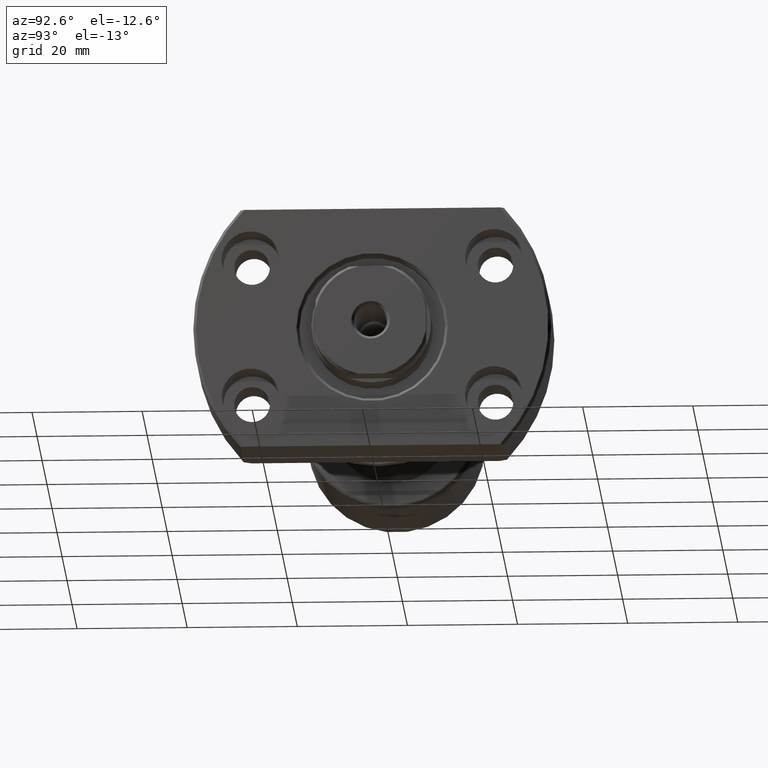
[diagram: clean part render]
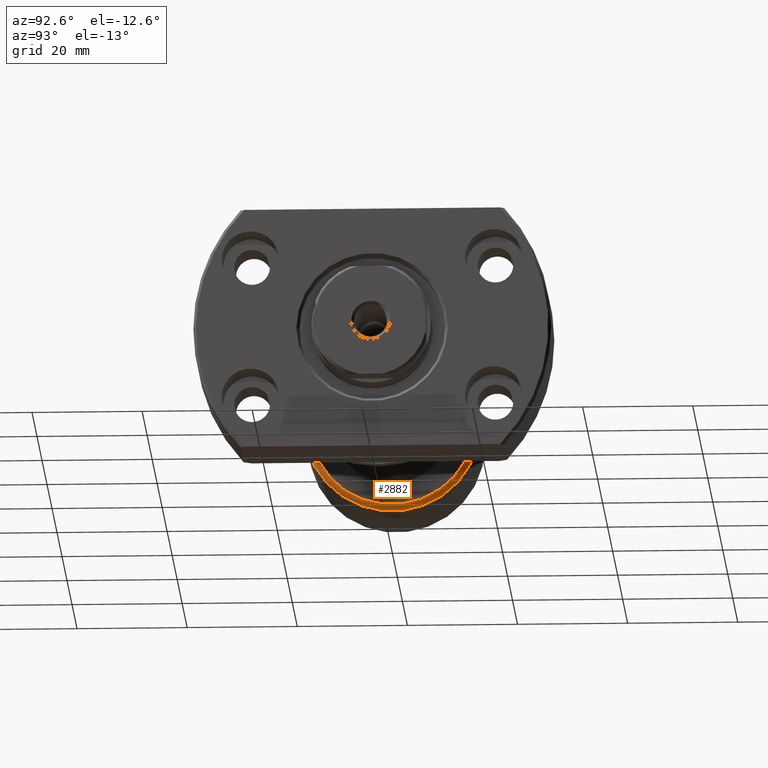
[diagram: same view with one face highlighted and labeled with its STEP entity id]
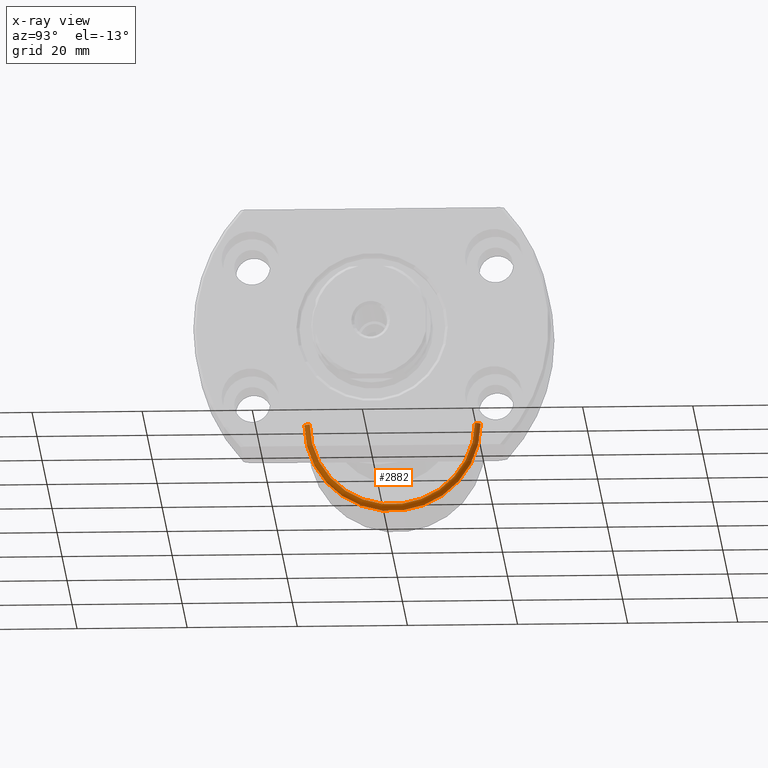
[diagram: x-ray of the same camera — body ghosted, the highlighted face saturated]
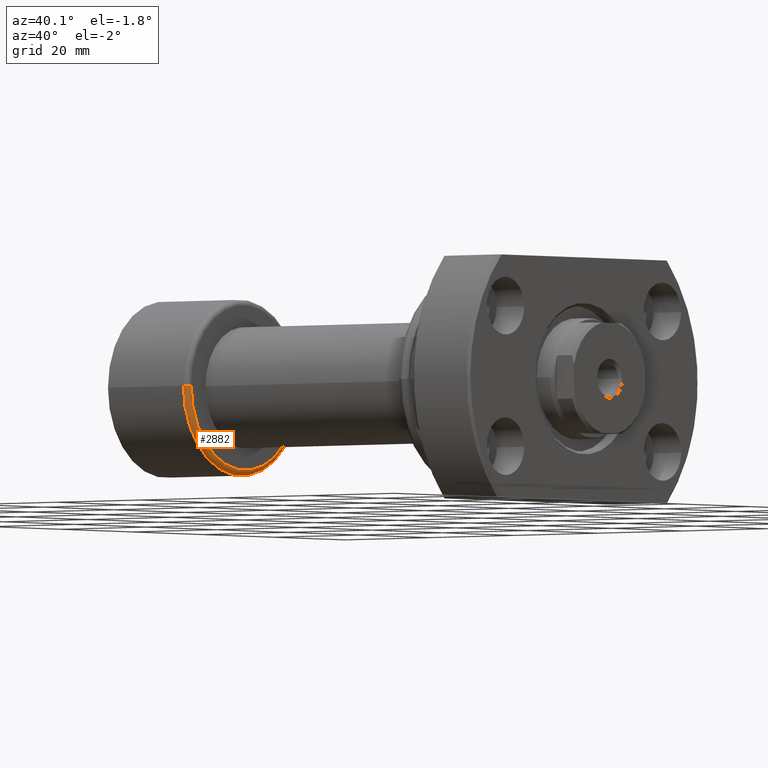
[diagram: same view with one face highlighted and labeled with its STEP entity id]
A machine part, auxiliary view. The second image highlights one B-rep face of the part: STEP entity #2882.
The next image is the same camera in x-ray: the body ghosted, the highlighted face saturated — about 28% of this face is hidden behind the body in this view.
A second angle (auxiliary view) of the same face is appended — the face is thin or edge-on in the first view.
In plain terms, the highlighted toroidal blend (fillet) surface has major radius 15 mm and minor (blend) radius 1 mm.
Its self-contained STEP definition (entity closure, byte-faithful):
#89 = CARTESIAN_POINT ( 'NONE',  ( 19.39999999999999503, 0.000000000000000000, 0.000000000000000000 ) ) ;
#144 = CARTESIAN_POINT ( 'NONE',  ( 19.39999999999999503, 2.074912104813986935E-16, 0.000000000000000000 ) ) ;
#200 = TOROIDAL_SURFACE ( 'NONE', #2019, 15.00000000000000000, 1.000000000000000888 ) ;
#238 = VERTEX_POINT ( 'NONE', #1360 ) ;
#285 = CARTESIAN_POINT ( 'NONE',  ( 19.39999999999999503, 15.00000000000000000, 1.836970198721029589E-15 ) ) ;
#296 = CIRCLE ( 'NONE', #719, 1.000000000000000888 ) ;
#332 = FACE_OUTER_BOUND ( 'NONE', #2846, .T. ) ;
#343 = DIRECTION ( 'NONE',  ( -1.000000000000000000, -1.069542322069065801E-17, -0.000000000000000000 ) ) ;
#464 = CIRCLE ( 'NONE', #1342, 16.00000000000000000 ) ;
#468 = CARTESIAN_POINT ( 'NONE',  ( 20.39999999999999503, 15.00000000000000000, 1.898202538678397163E-15 ) ) ;
#548 = ORIENTED_EDGE ( 'NONE', *, *, #2909, .F. ) ;
#554 = DIRECTION ( 'NONE',  ( 0.000000000000000000, -1.000000000000000000, -1.224646799147353454E-16 ) ) ;
#591 = ORIENTED_EDGE ( 'NONE', *, *, #1130, .T. ) ;
#659 = ORIENTED_EDGE ( 'NONE', *, *, #2571, .F. ) ;
#719 = AXIS2_PLACEMENT_3D ( 'NONE', #285, #1281, #554 ) ;
#950 = CIRCLE ( 'NONE', #1055, 15.00000000000000000 ) ;
#1055 = AXIS2_PLACEMENT_3D ( 'NONE', #2568, #343, #1344 ) ;
#1130 = EDGE_CURVE ( 'NONE', #2379, #238, #950, .T. ) ;
#1143 = DIRECTION ( 'NONE',  ( 0.000000000000000000, -1.000000000000000000, 0.000000000000000000 ) ) ;
#1192 = CIRCLE ( 'NONE', #2018, 1.000000000000000888 ) ;
#1281 = DIRECTION ( 'NONE',  ( 1.309811581274509052E-33, -1.224646799147353207E-16, 1.000000000000000000 ) ) ;
#1329 = EDGE_CURVE ( 'NONE', #238, #2546, #1192, .T. ) ;
#1342 = AXIS2_PLACEMENT_3D ( 'NONE', #144, #2153, #1143 ) ;
#1344 = DIRECTION ( 'NONE',  ( 0.000000000000000000, -1.000000000000000000, 0.000000000000000000 ) ) ;
#1360 = CARTESIAN_POINT ( 'NONE',  ( 20.39999999999999503, -15.00000000000000000, 0.000000000000000000 ) ) ;
#1722 = ORIENTED_EDGE ( 'NONE', *, *, #1329, .T. ) ;
#1767 = DIRECTION ( 'NONE',  ( 1.069542322069065801E-17, -1.000000000000000000, 0.000000000000000000 ) ) ;
#1910 = VERTEX_POINT ( 'NONE', #1965 ) ;
#1965 = CARTESIAN_POINT ( 'NONE',  ( 19.39999999999999503, 16.00000000000000000, 1.959434878635765131E-15 ) ) ;
#2018 = AXIS2_PLACEMENT_3D ( 'NONE', #3087, #2874, #2114 ) ;
#2019 = AXIS2_PLACEMENT_3D ( 'NONE', #89, #2821, #1767 ) ;
#2114 = DIRECTION ( 'NONE',  ( -1.000000000000000000, 0.000000000000000000, 0.000000000000000000 ) ) ;
#2153 = DIRECTION ( 'NONE',  ( -1.000000000000000000, -1.069542322069065801E-17, -0.000000000000000000 ) ) ;
#2379 = VERTEX_POINT ( 'NONE', #468 ) ;
#2546 = VERTEX_POINT ( 'NONE', #2840 ) ;
#2568 = CARTESIAN_POINT ( 'NONE',  ( 20.39999999999999503, 2.181866337020893623E-16, 0.000000000000000000 ) ) ;
#2571 = EDGE_CURVE ( 'NONE', #1910, #2546, #464, .T. ) ;
#2821 = DIRECTION ( 'NONE',  ( -1.000000000000000000, -1.069542322069065801E-17, -0.000000000000000000 ) ) ;
#2840 = CARTESIAN_POINT ( 'NONE',  ( 19.39999999999999503, -16.00000000000000000, 0.000000000000000000 ) ) ;
#2846 = EDGE_LOOP ( 'NONE', ( #548, #591, #1722, #659 ) ) ;
#2874 = DIRECTION ( 'NONE',  ( 0.000000000000000000, 0.000000000000000000, -1.000000000000000000 ) ) ;
#2882 = ADVANCED_FACE ( 'NONE', ( #332 ), #200, .T. ) ;
#2909 = EDGE_CURVE ( 'NONE', #2379, #1910, #296, .T. ) ;
#3087 = CARTESIAN_POINT ( 'NONE',  ( 19.39999999999999503, -15.00000000000000000, 0.000000000000000000 ) ) ;